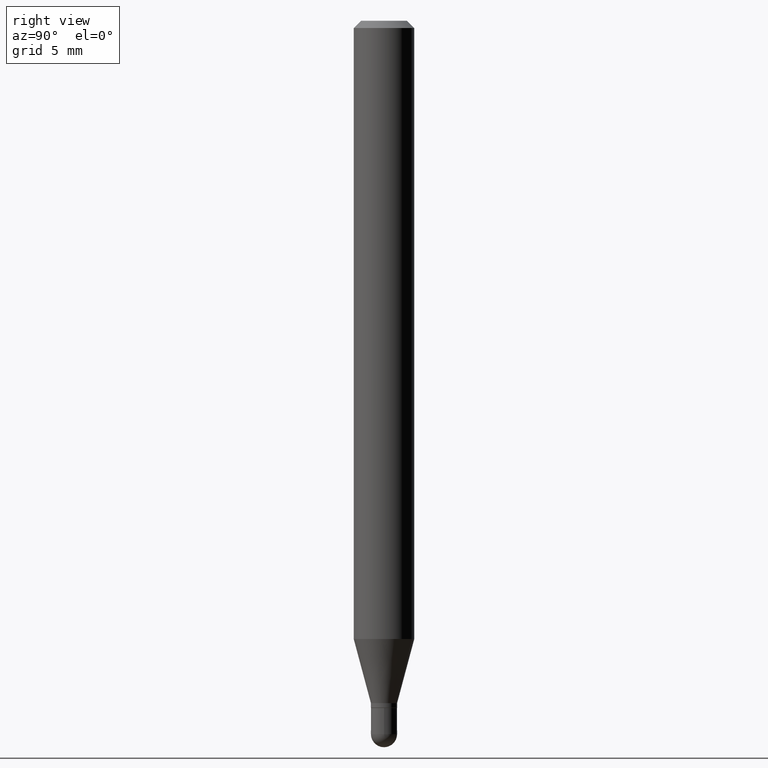
[diagram: clean part render]
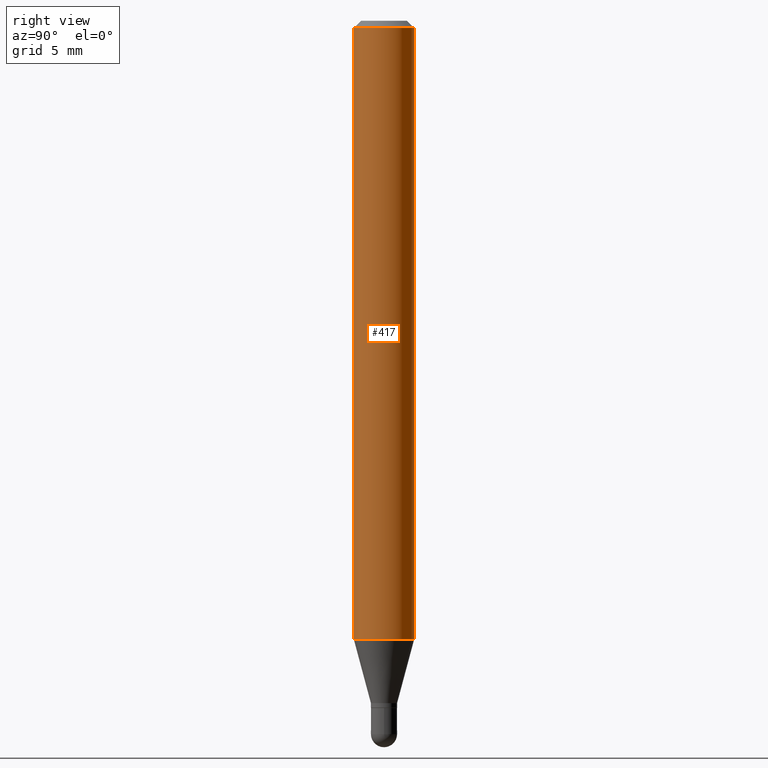
[diagram: same view with one face highlighted and labeled with its STEP entity id]
A machine part, right view. The second image highlights one B-rep face of the part: STEP entity #417.
In plain terms, the highlighted cylindrical surface (edge-blend (fillet) strip) has radius 1.5875 mm, axis along (-0, 0, 1).
Its self-contained STEP definition (entity closure, byte-faithful):
#10 = CARTESIAN_POINT ( 'NONE',  ( 0.000000000000000000, 0.000000000000000000, 0.000000000000000000 ) ) ;
#19 = EDGE_CURVE ( 'NONE', #490, #131, #100, .T. ) ;
#21 = EDGE_LOOP ( 'NONE', ( #95, #466, #496, #99 ) ) ;
#27 = CARTESIAN_POINT ( 'NONE',  ( -4.364351673553912750E-16, -0.06250000000000005551, -0.01500000000000011047 ) ) ;
#48 = CARTESIAN_POINT ( 'NONE',  ( -4.364351673553605587E-16, -0.06250000000000449640, -1.276512196331305304 ) ) ;
#62 = CARTESIAN_POINT ( 'NONE',  ( 4.440892098500625669E-16, 0.06250000000000000000, -2.182174891726189254E-16 ) ) ;
#71 = DIRECTION ( 'NONE',  ( -6.982962677686265922E-15, -1.000000000000000000, 3.483106191921935554E-15 ) ) ;
#72 = EDGE_CURVE ( 'NONE', #416, #490, #79, .T. ) ;
#79 = CIRCLE ( 'NONE', #167, 0.06250000000000000000 ) ;
#82 = LINE ( 'NONE', #319, #346 ) ;
#95 = ORIENTED_EDGE ( 'NONE', *, *, #72, .T. ) ;
#99 = ORIENTED_EDGE ( 'NONE', *, *, #152, .F. ) ;
#100 = LINE ( 'NONE', #62, #279 ) ;
#131 = VERTEX_POINT ( 'NONE', #351 ) ;
#152 = EDGE_CURVE ( 'NONE', #416, #386, #82, .T. ) ;
#156 = CARTESIAN_POINT ( 'NONE',  ( 3.121672104687660852E-29, -4.456916582106282753E-15, -1.276512196331305526 ) ) ;
#167 = AXIS2_PLACEMENT_3D ( 'NONE', #156, #428, #400 ) ;
#181 = CIRCLE ( 'NONE', #453, 0.06250000000000000000 ) ;
#223 = DIRECTION ( 'NONE',  ( -2.445469862065824792E-29, 3.491479826761902806E-15, 1.000000000000000000 ) ) ;
#238 = AXIS2_PLACEMENT_3D ( 'NONE', #10, #433, #395 ) ;
#264 = EDGE_CURVE ( 'NONE', #386, #131, #181, .T. ) ;
#272 = CYLINDRICAL_SURFACE ( 'NONE', #238, 0.06250000000000000000 ) ;
#279 = VECTOR ( 'NONE', #223, 39.37007874015748143 ) ;
#319 = CARTESIAN_POINT ( 'NONE',  ( -4.364351673553916201E-16, -0.06250000000000000000, 2.182174891726189254E-16 ) ) ;
#324 = DIRECTION ( 'NONE',  ( -2.445469862065824792E-29, 3.491479826761902806E-15, 1.000000000000000000 ) ) ;
#343 = CARTESIAN_POINT ( 'NONE',  ( 3.668204793098817781E-31, -5.237219740142969111E-17, -0.01500000000000032904 ) ) ;
#346 = VECTOR ( 'NONE', #324, 39.37007874015748143 ) ;
#351 = CARTESIAN_POINT ( 'NONE',  ( 4.440892098500940720E-16, 0.06249999999999995143, -0.01500000000000054588 ) ) ;
#386 = VERTEX_POINT ( 'NONE', #27 ) ;
#395 = DIRECTION ( 'NONE',  ( -6.982962677686265922E-15, -1.000000000000000000, 3.491479826761902806E-15 ) ) ;
#400 = DIRECTION ( 'NONE',  ( -6.982962677686265922E-15, -1.000000000000000000, 4.370956789862821150E-15 ) ) ;
#416 = VERTEX_POINT ( 'NONE', #48 ) ;
#417 = ADVANCED_FACE ( 'NONE', ( #441 ), #272, .T. ) ;
#428 = DIRECTION ( 'NONE',  ( -2.445469862065824792E-29, 3.491479826761902806E-15, 1.000000000000000000 ) ) ;
#433 = DIRECTION ( 'NONE',  ( -2.445469862065824792E-29, 3.491479826761902806E-15, 1.000000000000000000 ) ) ;
#441 = FACE_OUTER_BOUND ( 'NONE', #21, .T. ) ;
#453 = AXIS2_PLACEMENT_3D ( 'NONE', #343, #510, #71 ) ;
#466 = ORIENTED_EDGE ( 'NONE', *, *, #19, .T. ) ;
#476 = CARTESIAN_POINT ( 'NONE',  ( 4.440892098500935790E-16, 0.06249999999999551747, -1.276512196331305971 ) ) ;
#490 = VERTEX_POINT ( 'NONE', #476 ) ;
#496 = ORIENTED_EDGE ( 'NONE', *, *, #264, .F. ) ;
#510 = DIRECTION ( 'NONE',  ( -2.445469862065824792E-29, 3.491479826761902806E-15, 1.000000000000000000 ) ) ;